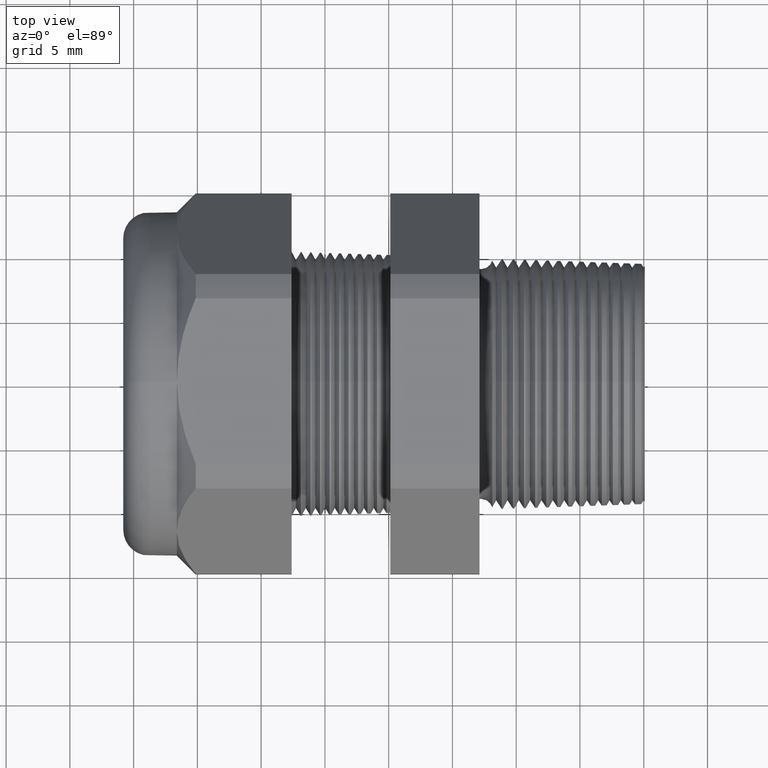
[diagram: clean part render]
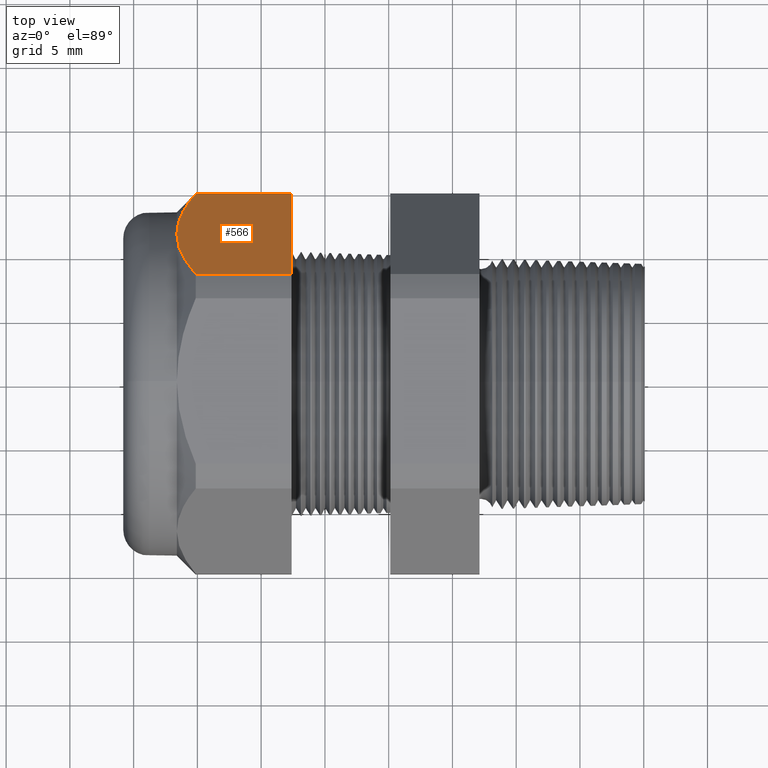
[diagram: same view with one face highlighted and labeled with its STEP entity id]
A machine part, top view. The second image highlights one B-rep face of the part: STEP entity #566.
In plain terms, the highlighted planar face has unit normal (0, 0.866, 0.5).
Its self-contained STEP definition (entity closure, byte-faithful):
#542 = VERTEX_POINT ( 'NONE', #2651 ) ;
#543 = VERTEX_POINT ( 'NONE', #2650 ) ;
#544 = ORIENTED_EDGE ( 'NONE', *, *, #545, .T. ) ;
#545 = EDGE_CURVE ( 'NONE', #543, #5323, #2649, .T. ) ;
#546 = ORIENTED_EDGE ( 'NONE', *, *, #547, .T. ) ;
#547 = EDGE_CURVE ( 'NONE', #5323, #560, #2648, .T. ) ;
#548 = ORIENTED_EDGE ( 'NONE', *, *, #558, .F. ) ;
#549 = ORIENTED_EDGE ( 'NONE', *, *, #550, .F. ) ;
#550 = EDGE_CURVE ( 'NONE', #542, #559, #2647, .T. ) ;
#558 = EDGE_CURVE ( 'NONE', #559, #560, #2679, .T. ) ;
#559 = VERTEX_POINT ( 'NONE', #2672 ) ;
#560 = VERTEX_POINT ( 'NONE', #2671 ) ;
#566 = ADVANCED_FACE ( 'NONE', ( #2721 ), #2720, .T. ) ;
#567 = EDGE_LOOP ( 'NONE', ( #568, #544, #546, #548, #549 ) ) ;
#568 = ORIENTED_EDGE ( 'NONE', *, *, #569, .T. ) ;
#569 = EDGE_CURVE ( 'NONE', #542, #543, #2715, .T. ) ;
#2633 = CARTESIAN_POINT ( 'NONE',  ( -1.239068638379754900, 0.4152540171503035800, 0.3407589442485963200 ) ) ;
#2634 = CARTESIAN_POINT ( 'NONE',  ( -1.244645669291338100, 0.4369033769668390100, 0.3032611530950170000 ) ) ;
#2635 = CARTESIAN_POINT ( 'NONE',  ( -1.244645669291338600, 0.4589934640057525800, 0.2650000000000002400 ) ) ;
#2636 = CARTESIAN_POINT ( 'NONE',  ( -0.8903149606299211000, 0.5614934640057526200, 0.08746479222419019400 ) ) ;
#2637 = CARTESIAN_POINT ( 'NONE',  ( -1.244645669291338600, 0.4589934640057525800, 0.2650000000000002400 ) ) ;
#2638 = CARTESIAN_POINT ( 'NONE',  ( -1.244645669291338800, 0.4645197752363700000, 0.2554281481701323700 ) ) ;
#2639 = CARTESIAN_POINT ( 'NONE',  ( -1.244295942806245400, 0.4700966316160713500, 0.2457687495739746800 ) ) ;
#2640 = CARTESIAN_POINT ( 'NONE',  ( -1.242906896935581700, 0.4811768528785422800, 0.2265772433882699600 ) ) ;
#2641 = CARTESIAN_POINT ( 'NONE',  ( -1.241872120295196100, 0.4866745645865459500, 0.2170549273846412700 ) ) ;
#2642 = CARTESIAN_POINT ( 'NONE',  ( -1.237808639247384800, 0.5030481801450604800, 0.1886949933336942200 ) ) ;
#2643 = CARTESIAN_POINT ( 'NONE',  ( -1.233820484782344600, 0.5138045271803672900, 0.1700644537646998900 ) ) ;
#2644 = CARTESIAN_POINT ( 'NONE',  ( -1.218547870590924300, 0.5456613404998795800, 0.1148868345280678700 ) ) ;
#2645 = CARTESIAN_POINT ( 'NONE',  ( -1.203975554148895900, 0.5663521078376417800, 0.07904937425147697000 ) ) ;
#2646 = CARTESIAN_POINT ( 'NONE',  ( -1.186345669291337900, 0.5866618723924792400, 0.04387183015273709400 ) ) ;
#2647 = LINE ( 'NONE', #2636, #2690 ) ;
#2648 = B_SPLINE_CURVE_WITH_KNOTS ( 'NONE', 3,
 ( #2635, #2634, #2633, #2693, #2692, #2691 ),
 .UNSPECIFIED., .F., .F.,
 ( 4, 2, 4 ),
 ( 0.006656663749350005800, 0.009982589261723356600, 0.01330851477409670700 ),
 .UNSPECIFIED. ) ;
#2649 = B_SPLINE_CURVE_WITH_KNOTS ( 'NONE', 3,
 ( #2646, #2645, #2644, #2643, #2642, #2641, #2640, #2639, #2638, #2637 ),
 .UNSPECIFIED., .F., .F.,
 ( 4, 2, 2, 2, 4 ),
 ( 2.483250567234854200E-007, 0.003328456037203363300, 0.004992559893276683200, 0.005824611821313344100, 0.006656663749350005800 ),
 .UNSPECIFIED. ) ;
#2650 = CARTESIAN_POINT ( 'NONE',  ( -1.186345669291337900, 0.5866618723924792400, 0.04387183015273709400 ) ) ;
#2651 = CARTESIAN_POINT ( 'NONE',  ( -0.8903149606299207700, 0.5866618723924792400, 0.04387183015273709400 ) ) ;
#2671 = CARTESIAN_POINT ( 'NONE',  ( -1.186345669291338600, 0.3313250556190259800, 0.4861281698472629800 ) ) ;
#2672 = CARTESIAN_POINT ( 'NONE',  ( -0.8903149606299207700, 0.3313250556190259800, 0.4861281698472629800 ) ) ;
#2673 = DIRECTION ( 'NONE',  ( -1.000000000000000000, 0.0000000000000000000, 0.0000000000000000000 ) ) ;
#2674 = VECTOR ( 'NONE', #2673, 39.37007874015748100 ) ;
#2675 = CARTESIAN_POINT ( 'NONE',  ( 0.2000000000000000400, 0.3313250556190259800, 0.4861281698472629800 ) ) ;
#2679 = LINE ( 'NONE', #2675, #2674 ) ;
#2689 = DIRECTION ( 'NONE',  ( 0.0000000000000000000, -0.5000000000000001100, 0.8660254037844384900 ) ) ;
#2690 = VECTOR ( 'NONE', #2689, 39.37007874015748900 ) ;
#2691 = CARTESIAN_POINT ( 'NONE',  ( -1.186345669291338600, 0.3313250556190259800, 0.4861281698472629800 ) ) ;
#2692 = CARTESIAN_POINT ( 'NONE',  ( -1.203997386286414200, 0.3516599709661860100, 0.4509070632983697700 ) ) ;
#2693 = CARTESIAN_POINT ( 'NONE',  ( -1.218775221355474100, 0.3726775389205835800, 0.4145035677498215000 ) ) ;
#2712 = DIRECTION ( 'NONE',  ( -1.000000000000000000, 0.0000000000000000000, 0.0000000000000000000 ) ) ;
#2713 = VECTOR ( 'NONE', #2712, 39.37007874015748100 ) ;
#2714 = CARTESIAN_POINT ( 'NONE',  ( 0.2000000000000000400, 0.5866618723924792400, 0.04387183015273709400 ) ) ;
#2715 = LINE ( 'NONE', #2714, #2713 ) ;
#2716 = DIRECTION ( 'NONE',  ( 0.0000000000000000000, -0.5000000000000001100, 0.8660254037844384900 ) ) ;
#2717 = DIRECTION ( 'NONE',  ( 0.0000000000000000000, 0.8660254037844386000, 0.5000000000000002200 ) ) ;
#2718 = CARTESIAN_POINT ( 'NONE',  ( 0.2000000000000000400, 0.3313250556190259800, 0.4861281698472629800 ) ) ;
#2719 = AXIS2_PLACEMENT_3D ( 'NONE', #2718, #2717, #2716 ) ;
#2720 = PLANE ( 'NONE',  #2719 ) ;
#2721 = FACE_OUTER_BOUND ( 'NONE', #567, .T. ) ;
#4675 = CARTESIAN_POINT ( 'NONE',  ( -1.244645669291338600, 0.4589934640057525800, 0.2650000000000002400 ) ) ;
#5323 = VERTEX_POINT ( 'NONE', #4675 ) ;